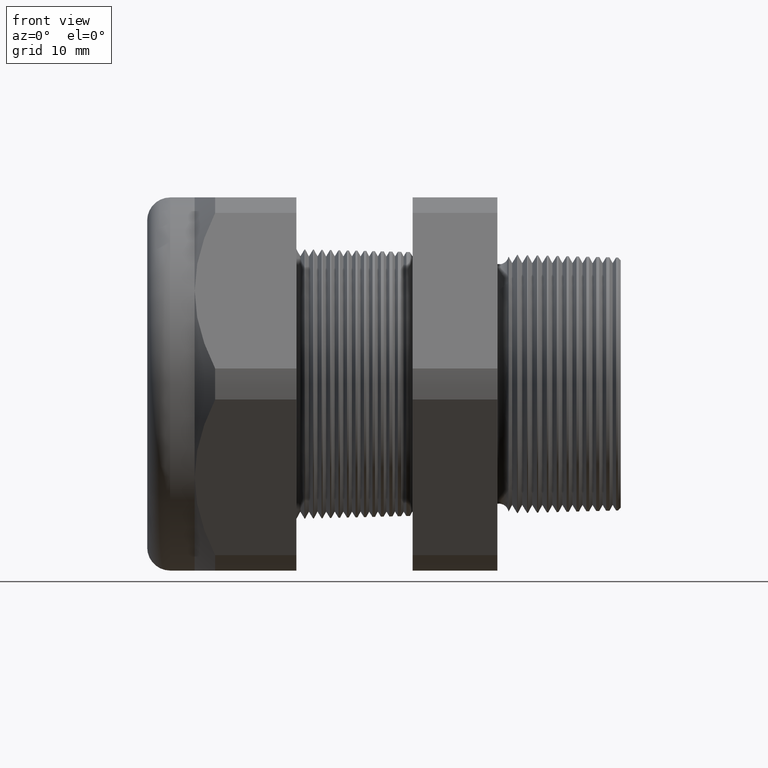
[diagram: clean part render]
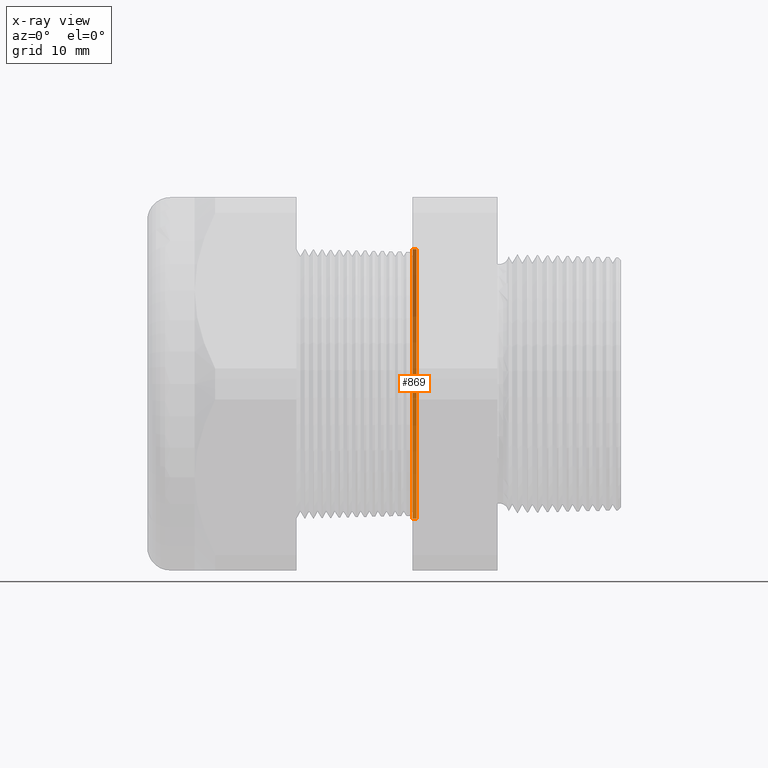
[diagram: x-ray — body ghosted, one internal face saturated and labeled with its STEP entity id]
A machine part, front view, then the same camera in x-ray: the body is ghosted and one INTERNAL B-rep face — a face not visible from any outside direction — is saturated and labeled: STEP entity #869.
In plain terms, the highlighted conical surface has half-angle 1.5 deg.
Its self-contained STEP definition (entity closure, byte-faithful):
#478 = EDGE_CURVE ( 'NONE', #5346, #5275, #2097, .T. ) ;
#869 = ADVANCED_FACE ( 'NONE', ( #2653 ), #2648, .F. ) ;
#923 = ORIENTED_EDGE ( 'NONE', *, *, #5343, .F. ) ;
#924 = ORIENTED_EDGE ( 'NONE', *, *, #5243, .T. ) ;
#925 = ORIENTED_EDGE ( 'NONE', *, *, #5348, .T. ) ;
#926 = ORIENTED_EDGE ( 'NONE', *, *, #478, .T. ) ;
#2093 = DIRECTION ( 'NONE',  ( 0.0000000000000000000, 0.0000000000000000000, 1.000000000000000000 ) ) ;
#2094 = DIRECTION ( 'NONE',  ( -1.000000000000000000, 0.0000000000000000000, 0.0000000000000000000 ) ) ;
#2095 = CARTESIAN_POINT ( 'NONE',  ( -0.6052755905511809600, 0.0000000000000000000, 0.0000000000000000000 ) ) ;
#2096 = AXIS2_PLACEMENT_3D ( 'NONE', #2095, #2094, #2093 ) ;
#2097 = CIRCLE ( 'NONE', #2096, 0.4696061802346682700 ) ;
#2643 = DIRECTION ( 'NONE',  ( 0.0000000000000000000, 0.0000000000000000000, 1.000000000000000000 ) ) ;
#2644 = DIRECTION ( 'NONE',  ( -1.000000000000000000, 0.0000000000000000000, 0.0000000000000000000 ) ) ;
#2645 = CARTESIAN_POINT ( 'NONE',  ( -0.5914573393463203900, 0.0000000000000000000, 0.0000000000000000000 ) ) ;
#2646 = AXIS2_PLACEMENT_3D ( 'NONE', #2645, #2644, #2643 ) ;
#2648 = CONICAL_SURFACE ( 'NONE', #2646, 0.4692443365923945100, 0.02617993877990797800 ) ;
#2653 = FACE_OUTER_BOUND ( 'NONE', #5390, .T. ) ;
#3751 = DIRECTION ( 'NONE',  ( 0.0000000000000000000, 0.0000000000000000000, -1.000000000000000000 ) ) ;
#3752 = DIRECTION ( 'NONE',  ( 1.000000000000000000, 0.0000000000000000000, 0.0000000000000000000 ) ) ;
#3753 = CARTESIAN_POINT ( 'NONE',  ( -0.5914573393463203900, 0.0000000000000000000, 0.0000000000000000000 ) ) ;
#3754 = AXIS2_PLACEMENT_3D ( 'NONE', #3753, #3752, #3751 ) ;
#3755 = CIRCLE ( 'NONE', #3754, 0.4692443365923945100 ) ;
#3761 = CARTESIAN_POINT ( 'NONE',  ( -0.6052755905511809600, 5.751017054842014700E-017, -0.4696061802346682100 ) ) ;
#3762 = CARTESIAN_POINT ( 'NONE',  ( -0.5914573393463203900, 0.0000000000000000000, -0.4692443365923945100 ) ) ;
#3763 = CARTESIAN_POINT ( 'NONE',  ( -0.5914573393463203900, 5.746585748258992000E-017, 0.4692443365923945100 ) ) ;
#3932 = DIRECTION ( 'NONE',  ( -0.9996573249755573700, 0.0000000000000000000, 0.02617694830786618600 ) ) ;
#3933 = VECTOR ( 'NONE', #3932, 39.37007874015748100 ) ;
#3934 = CARTESIAN_POINT ( 'NONE',  ( -0.5914573393463203900, 0.0000000000000000000, 0.4692443365923945100 ) ) ;
#3935 = LINE ( 'NONE', #3934, #3933 ) ;
#3936 = CARTESIAN_POINT ( 'NONE',  ( -0.6052755905511809600, 0.0000000000000000000, 0.4696061802346682100 ) ) ;
#3943 = DIRECTION ( 'NONE',  ( -0.9996573249755573700, 3.205751595667405400E-018, -0.02617694830786618600 ) ) ;
#3944 = VECTOR ( 'NONE', #3943, 39.37007874015748100 ) ;
#3945 = CARTESIAN_POINT ( 'NONE',  ( -0.5914573393463203900, 5.746585748258992000E-017, -0.4692443365923945100 ) ) ;
#3946 = LINE ( 'NONE', #3945, #3944 ) ;
#5243 = EDGE_CURVE ( 'NONE', #5274, #5273, #3755, .T. ) ;
#5273 = VERTEX_POINT ( 'NONE', #3763 ) ;
#5274 = VERTEX_POINT ( 'NONE', #3762 ) ;
#5275 = VERTEX_POINT ( 'NONE', #3761 ) ;
#5343 = EDGE_CURVE ( 'NONE', #5274, #5275, #3946, .T. ) ;
#5346 = VERTEX_POINT ( 'NONE', #3936 ) ;
#5348 = EDGE_CURVE ( 'NONE', #5273, #5346, #3935, .T. ) ;
#5390 = EDGE_LOOP ( 'NONE', ( #923, #924, #925, #926 ) ) ;